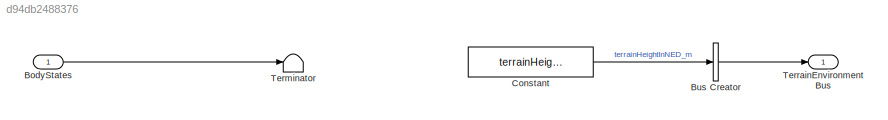
MODEL slx_d94db2488376
KIND model
BLOCK [Inport] BodyStates
  OutDataTypeStr = Bus: BodyStateBus
BLOCK [BusCreator] Bus Creator
  DisplayOption = bar
  InheritFromInputs = on
  Inputs = 1
  OutDataTypeStr = Bus: TerrainEnvironmentBus
BLOCK [Constant] Constant
  Value = terrainHeightNED_m
BLOCK [Terminator] Terminator
BLOCK [Outport] TerrainEnvironmentBus
  OutDataTypeStr = Bus: TerrainEnvironmentBus
LINE BodyStates:1 -> Terminator:1
LINE Bus Creator:1 -> TerrainEnvironmentBus:1
LINE Constant:1 -> Bus Creator:1
